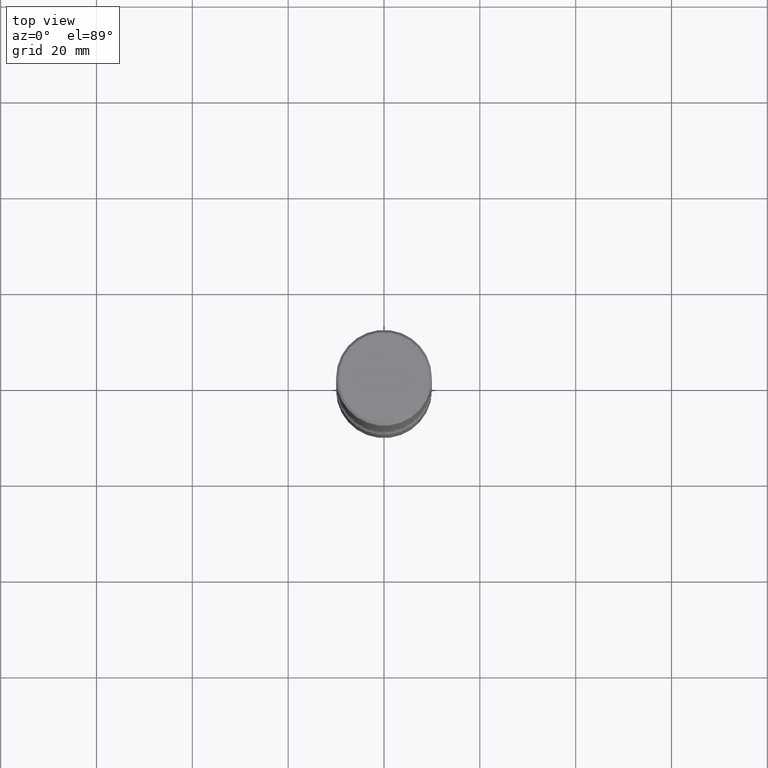
[diagram: clean part render]
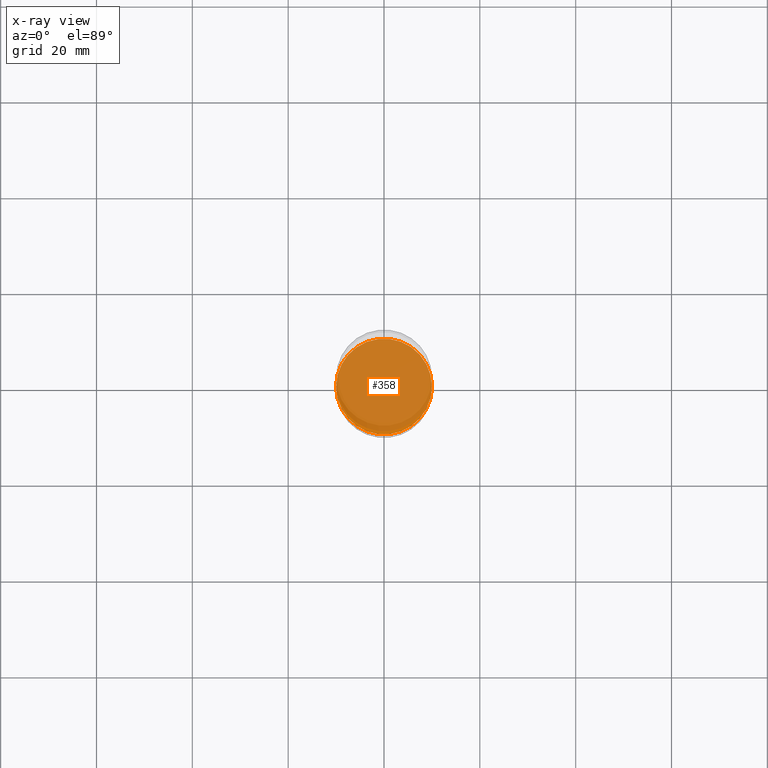
[diagram: x-ray — body ghosted, one internal face saturated and labeled with its STEP entity id]
A machine part, top view, then the same camera in x-ray: the body is ghosted and one INTERNAL B-rep face — a face not visible from any outside direction — is saturated and labeled: STEP entity #358.
In plain terms, the highlighted planar face has unit normal (0, -0, -1).
Its self-contained STEP definition (entity closure, byte-faithful):
#7 = AXIS2_PLACEMENT_3D ( 'NONE', #196, #28, #375 ) ;
#28 = DIRECTION ( 'NONE',  ( -2.445468806185136597E-29, 3.491481338843145583E-15, 1.000000000000000000 ) ) ;
#91 = ORIENTED_EDGE ( 'NONE', *, *, #132, .T. ) ;
#93 = EDGE_LOOP ( 'NONE', ( #401, #91 ) ) ;
#122 = VERTEX_POINT ( 'NONE', #494 ) ;
#128 = EDGE_CURVE ( 'NONE', #156, #122, #546, .T. ) ;
#132 = EDGE_CURVE ( 'NONE', #122, #156, #381, .T. ) ;
#156 = VERTEX_POINT ( 'NONE', #542 ) ;
#166 = AXIS2_PLACEMENT_3D ( 'NONE', #191, #378, #288 ) ;
#175 = DIRECTION ( 'NONE',  ( 2.438088387897960049E-29, -3.491481338843145188E-15, -1.000000000000000000 ) ) ;
#191 = CARTESIAN_POINT ( 'NONE',  ( 1.030178189293550378E-28, -1.470821428801063089E-14, -4.212599999999998346 ) ) ;
#196 = CARTESIAN_POINT ( 'NONE',  ( 1.030178189293550378E-28, -1.470821428801063089E-14, -4.212599999999998346 ) ) ;
#255 = CARTESIAN_POINT ( 'NONE',  ( 1.030178189293550378E-28, -1.470821428801063089E-14, -4.212599999999998346 ) ) ;
#288 = DIRECTION ( 'NONE',  ( 1.000000000000000000, -6.982962677686269077E-15, 0.000000000000000000 ) ) ;
#294 = PLANE ( 'NONE',  #302 ) ;
#302 = AXIS2_PLACEMENT_3D ( 'NONE', #255, #175, #439 ) ;
#358 = ADVANCED_FACE ( 'NONE', ( #434 ), #294, .F. ) ;
#375 = DIRECTION ( 'NONE',  ( 1.000000000000000000, -6.982962677686269077E-15, 0.000000000000000000 ) ) ;
#378 = DIRECTION ( 'NONE',  ( -2.445468806185136597E-29, 3.491481338843145583E-15, 1.000000000000000000 ) ) ;
#381 = CIRCLE ( 'NONE', #7, 0.3937000000000002720 ) ;
#401 = ORIENTED_EDGE ( 'NONE', *, *, #128, .T. ) ;
#434 = FACE_OUTER_BOUND ( 'NONE', #93, .T. ) ;
#439 = DIRECTION ( 'NONE',  ( -1.000000000000000000, 6.982962677686265922E-15, -4.876176775795935793E-29 ) ) ;
#494 = CARTESIAN_POINT ( 'NONE',  ( -0.3937000000000002720, -1.479738973421168625E-14, -4.212599999999998346 ) ) ;
#542 = CARTESIAN_POINT ( 'NONE',  ( 0.3937000000000002720, -1.745740669421571411E-14, -4.212599999999998346 ) ) ;
#546 = CIRCLE ( 'NONE', #166, 0.3937000000000002720 ) ;